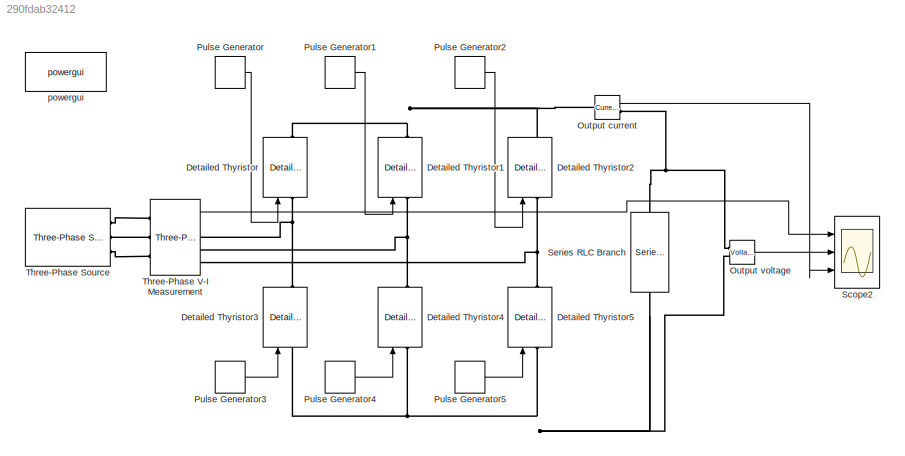
MODEL slx_290fdab32412
KIND model
CONFIG AbsTol = auto
CONFIG EnableMultiTasking = off
CONFIG FixedStep = auto
CONFIG MaxStep = auto
CONFIG MinStep = auto
CONFIG RelTol = 1e-3
CONFIG SampleTimeConstraint = Unconstrained
CONFIG SolverName = VariableStepAuto
CONFIG StartTime = 0.0
CONFIG StopTime = 2
BLOCK [Reference] Detailed Thyristor  REF=spsDetailedThyristorLib/Detailed Thyristor
  NameLocation = right
  Ports = [1, 1, 0, 0, 0, 1, 1]
  SourceBlock = spsDetailedThyristorLib/Detailed Thyristor
  SourceProductBaseCode = PS
  SourceType = Detailed Thyristor
BLOCK [Reference] Detailed Thyristor1  REF=spsDetailedThyristorLib/Detailed Thyristor
  NameLocation = right
  Ports = [1, 1, 0, 0, 0, 1, 1]
  SourceBlock = spsDetailedThyristorLib/Detailed Thyristor
  SourceProductBaseCode = PS
  SourceType = Detailed Thyristor
BLOCK [Reference] Detailed Thyristor2  REF=spsDetailedThyristorLib/Detailed Thyristor
  NameLocation = right
  Ports = [1, 1, 0, 0, 0, 1, 1]
  SourceBlock = spsDetailedThyristorLib/Detailed Thyristor
  SourceProductBaseCode = PS
  SourceType = Detailed Thyristor
BLOCK [Reference] Detailed Thyristor3  REF=spsDetailedThyristorLib/Detailed Thyristor
  NameLocation = right
  Ports = [1, 1, 0, 0, 0, 1, 1]
  SourceBlock = spsDetailedThyristorLib/Detailed Thyristor
  SourceProductBaseCode = PS
  SourceType = Detailed Thyristor
BLOCK [Reference] Detailed Thyristor4  REF=spsDetailedThyristorLib/Detailed Thyristor
  NameLocation = right
  Ports = [1, 1, 0, 0, 0, 1, 1]
  SourceBlock = spsDetailedThyristorLib/Detailed Thyristor
  SourceProductBaseCode = PS
  SourceType = Detailed Thyristor
BLOCK [Reference] Detailed Thyristor5  REF=spsDetailedThyristorLib/Detailed Thyristor
  NameLocation = right
  Ports = [1, 1, 0, 0, 0, 1, 1]
  SourceBlock = spsDetailedThyristorLib/Detailed Thyristor
  SourceProductBaseCode = PS
  SourceType = Detailed Thyristor
BLOCK [Reference] Output current   REF=spsCurrentMeasurementLib/Current Measurement
  Ports = [0, 1, 0, 0, 0, 1, 1]
  SourceBlock = spsCurrentMeasurementLib/Current Measurement
  SourceProductBaseCode = PS
  SourceType = Current Measurement
  UserDataPersistent = on
BLOCK [Reference] Output voltage  REF=spsVoltageMeasurementLib/Voltage Measurement
  Ports = [0, 1, 0, 0, 0, 2]
  SourceBlock = spsVoltageMeasurementLib/Voltage Measurement
  SourceProductBaseCode = PS
  SourceType = Voltage Measurement
  UserDataPersistent = on
BLOCK [DiscretePulseGenerator] Pulse Generator
  Amplitude = 5
  Period = 0.02
  PhaseDelay = a*(0.02/360)
  Ports = [0, 1]
  PulseType = Time based
  PulseWidth = 10
BLOCK [DiscretePulseGenerator] Pulse Generator1
  Amplitude = 5
  Period = 0.02
  PhaseDelay = 0.02*((a+120)/360)
  Ports = [0, 1]
  PulseType = Time based
  PulseWidth = 10
BLOCK [DiscretePulseGenerator] Pulse Generator2
  Amplitude = 5
  Period = 0.02
  PhaseDelay = 0.02*((a+240)/360)
  Ports = [0, 1]
  PulseType = Time based
  PulseWidth = 10
BLOCK [DiscretePulseGenerator] Pulse Generator3
  Amplitude = 5
  Period = 0.02
  PhaseDelay = 0.02*((a+180)/360)
  Ports = [0, 1]
  PulseType = Time based
  PulseWidth = 10
BLOCK [DiscretePulseGenerator] Pulse Generator4
  Amplitude = 5
  Period = 0.02
  PhaseDelay = 0.02*((a+300)/360)
  Ports = [0, 1]
  PulseType = Time based
  PulseWidth = 10
BLOCK [DiscretePulseGenerator] Pulse Generator5
  Amplitude = 5
  Period = 0.02
  PhaseDelay = 0.02*((a+60)/360)
  Ports = [0, 1]
  PulseType = Time based
  PulseWidth = 10
BLOCK [Scope] Scope2
  Floating = off
  NumInputPorts = 3
  Ports = [3]
  ScopeSpecificationString = Simulink.scopes.TimeScopeBlockCfg('CurrentConfiguration', extmgr.ConfigurationSet(extmgr.Configuration('Core','General UI',true,'FigureColor',[1 1 1]),extmgr.Configuration('Core','Source UI',true),extmgr.Configuration('Sources','WiredSimulink',true,'DataLoggingVariableName','ScopeData1'),extmgr.Configuration('Visuals','Time Domain',true,'SerializedDisplays',{struct('MinYLimReal','-234.74277','MaxY...<+3595ch>
BLOCK [Reference] Series RLC Branch  REF=spsSeriesRLCBranchLib/Series RLC Branch
  NameLocation = left
  Ports = [0, 0, 0, 0, 0, 1, 1]
  SourceBlock = spsSeriesRLCBranchLib/Series RLC Branch
  SourceProductBaseCode = PS
  SourceType = Series RLC Branch
BLOCK [Reference] Three-Phase Source  REF=spsThreePhaseSourceLib/Three-Phase Source
  Ports = [0, 0, 0, 0, 0, 0, 3]
  SourceBlock = spsThreePhaseSourceLib/Three-Phase Source
  SourceProductBaseCode = PS
  SourceType = Three-Phase Source
BLOCK [Reference] Three-Phase V-I Measurement  REF=spsThreePhaseVIMeasurementLib/Three-Phase
V-I Measurement
  Ports = [0, 2, 0, 0, 0, 3, 3]
  SourceBlock = spsThreePhaseVIMeasurementLib/Three-Phase\nV-I Measurement
  SourceProductBaseCode = PS
  SourceType = Three-Phase VI Measurement
BLOCK [Reference] powergui  REF=spspowerguiLib/powergui
  Ports = []
  Priority = 1
  SourceBlock = spspowerguiLib/powergui
  SourceProductBaseCode = PS
  SourceType = PSB option menu block
LINE Output current :1 -> Scope2:3
LINE Output voltage:1 -> Scope2:2
LINE Pulse Generator1:1 -> Detailed Thyristor1:1
LINE Pulse Generator2:1 -> Detailed Thyristor2:1
LINE Pulse Generator3:1 -> Detailed Thyristor3:1
LINE Pulse Generator4:1 -> Detailed Thyristor4:1
LINE Pulse Generator5:1 -> Detailed Thyristor5:1
LINE Pulse Generator:1 -> Detailed Thyristor:1
LINE Three-Phase V-I Measurement:1 -> Scope2:1
PNET net1: Detailed Thyristor1:LConn1 -- Detailed Thyristor4:RConn1 -- Three-Phase V-I Measurement:RConn2
PNET net2: Detailed Thyristor1:RConn1 -- Detailed Thyristor2:RConn1 -- Detailed Thyristor:RConn1 -- Output current :LConn1
PNET net3: Detailed Thyristor2:LConn1 -- Detailed Thyristor5:RConn1 -- Three-Phase V-I Measurement:RConn3
PNET net4: Detailed Thyristor3:LConn1 -- Detailed Thyristor4:LConn1 -- Detailed Thyristor5:LConn1 -- Output voltage:LConn2 -- Series RLC Branch:RConn1
PNET net5: Detailed Thyristor3:RConn1 -- Detailed Thyristor:LConn1 -- Three-Phase V-I Measurement:RConn1
PNET net6: Output current :RConn1 -- Output voltage:LConn1 -- Series RLC Branch:LConn1
PLINE Three-Phase Source:RConn1 -- Three-Phase V-I Measurement:LConn1
PLINE Three-Phase Source:RConn2 -- Three-Phase V-I Measurement:LConn2
PLINE Three-Phase Source:RConn3 -- Three-Phase V-I Measurement:LConn3
note: PNET lines group multi-terminal physical nets as a canonical sorted terminal list (undirected conserving connections); 2-terminal nets keep the pairwise PLINE form
